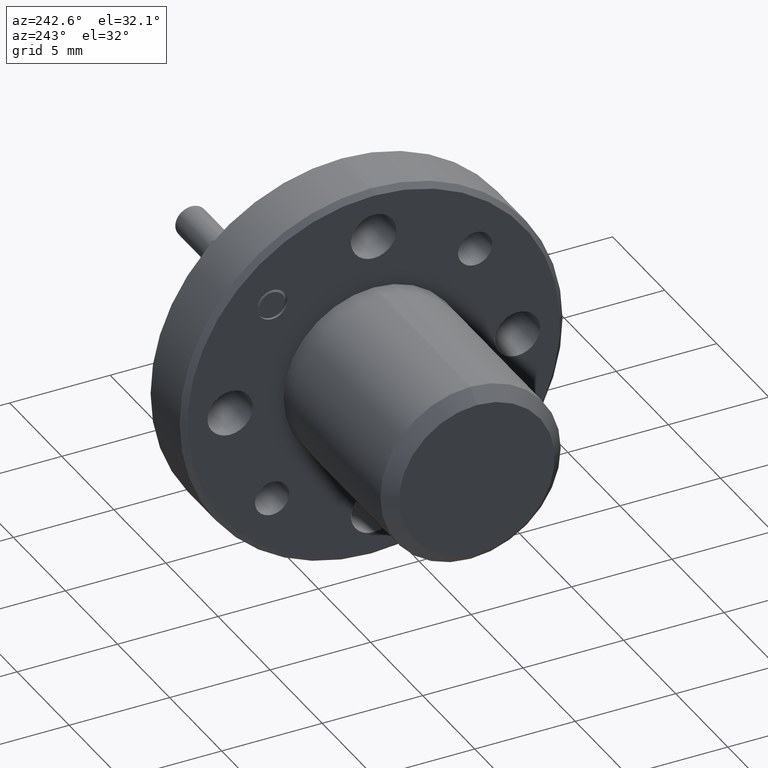
[diagram: clean part render]
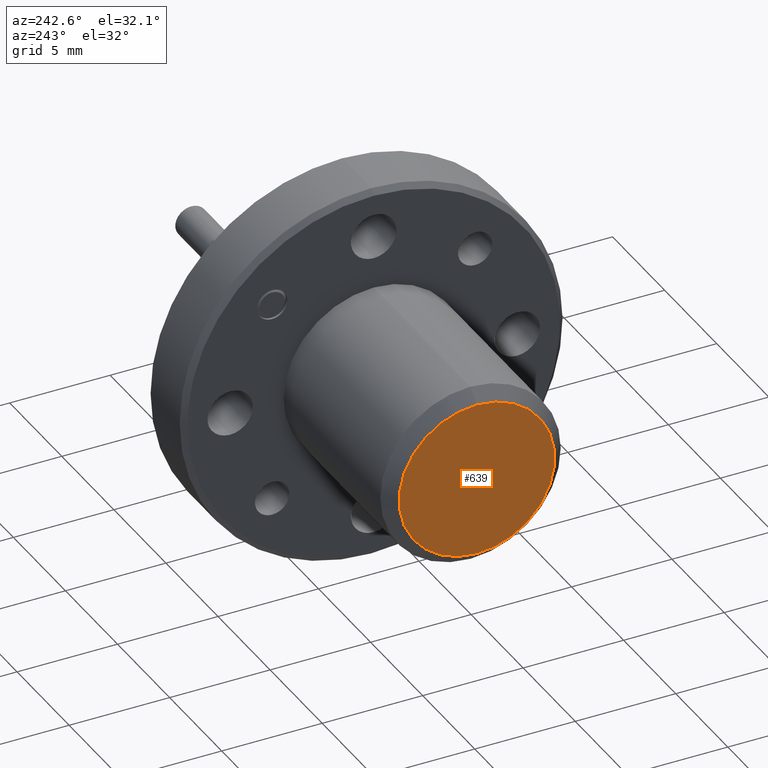
[diagram: same view with one face highlighted and labeled with its STEP entity id]
A machine part, auxiliary view. The second image highlights one B-rep face of the part: STEP entity #639.
In plain terms, the highlighted planar face has unit normal (-1, 0, 0).
Its self-contained STEP definition (entity closure, byte-faithful):
#75 = EDGE_LOOP ( 'NONE', ( #169, #1246 ) ) ;
#100 = EDGE_CURVE ( 'NONE', #105, #817, #1707, .T. ) ;
#105 = VERTEX_POINT ( 'NONE', #1782 ) ;
#169 = ORIENTED_EDGE ( 'NONE', *, *, #100, .T. ) ;
#326 = DIRECTION ( 'NONE',  ( 0.0000000000000000000, 0.0000000000000000000, 1.000000000000000000 ) ) ;
#373 = PLANE ( 'NONE',  #1174 ) ;
#486 = EDGE_CURVE ( 'NONE', #817, #105, #700, .T. ) ;
#492 = DIRECTION ( 'NONE',  ( -1.000000000000000000, 0.0000000000000000000, 0.0000000000000000000 ) ) ;
#639 = ADVANCED_FACE ( 'NONE', ( #1316 ), #373, .T. ) ;
#661 = CARTESIAN_POINT ( 'NONE',  ( -0.1694848603730567700, 0.4701054730334652800, 0.4691474666369300800 ) ) ;
#700 = CIRCLE ( 'NONE', #1326, 0.1525000000000000200 ) ;
#817 = VERTEX_POINT ( 'NONE', #1559 ) ;
#818 = DIRECTION ( 'NONE',  ( -1.000000000000000000, 0.0000000000000000000, 0.0000000000000000000 ) ) ;
#866 = DIRECTION ( 'NONE',  ( -1.000000000000000000, 0.0000000000000000000, 0.0000000000000000000 ) ) ;
#1051 = CARTESIAN_POINT ( 'NONE',  ( -0.1694848603730567700, 0.6526054730334652800, 0.4691474666369300800 ) ) ;
#1141 = CARTESIAN_POINT ( 'NONE',  ( -0.1694848603730567700, 0.4701054730334652800, 0.4691474666369300800 ) ) ;
#1174 = AXIS2_PLACEMENT_3D ( 'NONE', #1051, #866, #1981 ) ;
#1246 = ORIENTED_EDGE ( 'NONE', *, *, #486, .T. ) ;
#1316 = FACE_OUTER_BOUND ( 'NONE', #75, .T. ) ;
#1326 = AXIS2_PLACEMENT_3D ( 'NONE', #1141, #492, #326 ) ;
#1559 = CARTESIAN_POINT ( 'NONE',  ( -0.1694848603730567700, 0.4701054730334652800, 0.6216474666369300500 ) ) ;
#1707 = CIRCLE ( 'NONE', #1956, 0.1525000000000000200 ) ;
#1782 = CARTESIAN_POINT ( 'NONE',  ( -0.1694848603730567700, 0.4701054730334652800, 0.3166474666369300500 ) ) ;
#1956 = AXIS2_PLACEMENT_3D ( 'NONE', #661, #818, #1960 ) ;
#1960 = DIRECTION ( 'NONE',  ( 0.0000000000000000000, 0.0000000000000000000, 1.000000000000000000 ) ) ;
#1981 = DIRECTION ( 'NONE',  ( 0.0000000000000000000, 0.0000000000000000000, 1.000000000000000000 ) ) ;